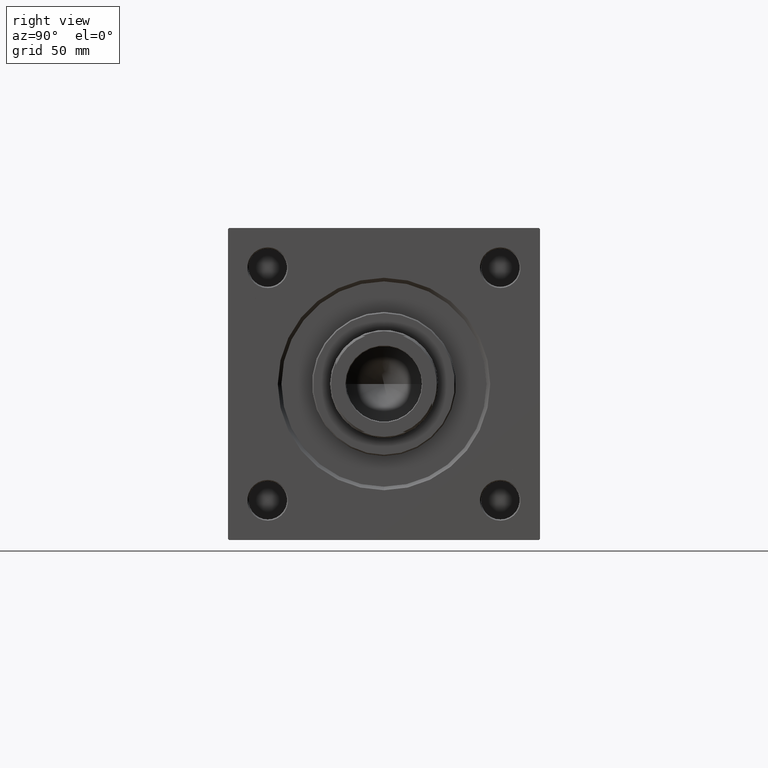
[diagram: clean part render]
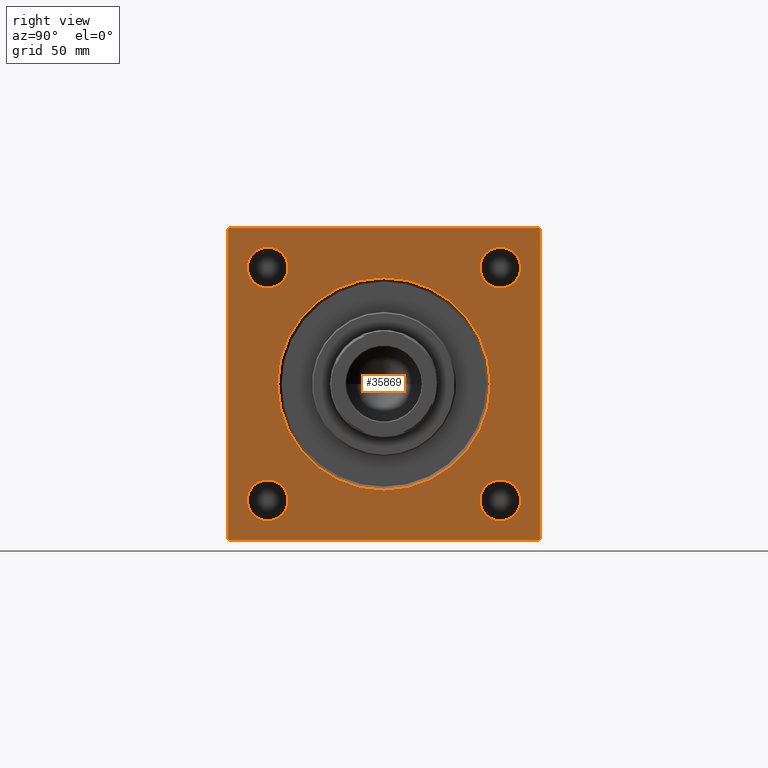
[diagram: same view with one face highlighted and labeled with its STEP entity id]
A machine part, right view. The second image highlights one B-rep face of the part: STEP entity #35869.
In plain terms, the highlighted planar face has unit normal (-1, 0, 0).
Its self-contained STEP definition (entity closure, byte-faithful):
#282 = DIRECTION ( 'NONE',  ( 0.000000000000000000, 0.000000000000000000, -1.000000000000000000 ) ) ;
#477 = EDGE_CURVE ( 'NONE', #14630, #39445, #42008, .T. ) ;
#698 = DIRECTION ( 'NONE',  ( -1.000000000000000000, 0.000000000000000000, -0.000000000000000000 ) ) ;
#1036 = ORIENTED_EDGE ( 'NONE', *, *, #49412, .T. ) ;
#1122 = ORIENTED_EDGE ( 'NONE', *, *, #16027, .T. ) ;
#1437 = VERTEX_POINT ( 'NONE', #34018 ) ;
#1631 = EDGE_CURVE ( 'NONE', #28103, #32624, #3600, .T. ) ;
#2414 = CARTESIAN_POINT ( 'NONE',  ( 188.0000000000000000, 65.00000000000002842, 65.00000000000001421 ) ) ;
#2694 = VERTEX_POINT ( 'NONE', #20669 ) ;
#2703 = EDGE_CURVE ( 'NONE', #34264, #2694, #6923, .T. ) ;
#2796 = DIRECTION ( 'NONE',  ( -1.000000000000000000, 0.000000000000000000, -0.000000000000000000 ) ) ;
#2797 = ORIENTED_EDGE ( 'NONE', *, *, #16242, .T. ) ;
#2876 = EDGE_CURVE ( 'NONE', #8581, #19145, #30597, .T. ) ;
#2885 = DIRECTION ( 'NONE',  ( -1.000000000000000000, 0.000000000000000000, -0.000000000000000000 ) ) ;
#3102 = DIRECTION ( 'NONE',  ( -1.000000000000000000, 0.000000000000000000, -0.000000000000000000 ) ) ;
#3371 = VECTOR ( 'NONE', #29408, 1000.000000000000000 ) ;
#3600 = CIRCLE ( 'NONE', #43708, 8.499999999999923617 ) ;
#3602 = VERTEX_POINT ( 'NONE', #25509 ) ;
#3674 = AXIS2_PLACEMENT_3D ( 'NONE', #4774, #12236, #8390 ) ;
#3826 = EDGE_CURVE ( 'NONE', #8536, #41852, #34427, .T. ) ;
#4265 = DIRECTION ( 'NONE',  ( 0.000000000000000000, 0.000000000000000000, -1.000000000000000000 ) ) ;
#4302 = EDGE_CURVE ( 'NONE', #32624, #28103, #45392, .T. ) ;
#4774 = CARTESIAN_POINT ( 'NONE',  ( 188.0000000000000000, 0.000000000000000000, 0.000000000000000000 ) ) ;
#4793 = VERTEX_POINT ( 'NONE', #6477 ) ;
#5014 = AXIS2_PLACEMENT_3D ( 'NONE', #37159, #41016, #29509 ) ;
#5825 = LINE ( 'NONE', #9706, #3371 ) ;
#6477 = CARTESIAN_POINT ( 'NONE',  ( 188.0000000000000000, -64.99999999999998579, 64.50000000000008527 ) ) ;
#6508 = CIRCLE ( 'NONE', #20443, 8.499999999999923617 ) ;
#6653 = CARTESIAN_POINT ( 'NONE',  ( 188.0000000000000000, 48.45000000000000995, -48.45000000000001705 ) ) ;
#6923 = CIRCLE ( 'NONE', #3674, 44.24999999999998579 ) ;
#7154 = CARTESIAN_POINT ( 'NONE',  ( 188.0000000000000000, -64.99999999999998579, 64.50000000000008527 ) ) ;
#7560 = DIRECTION ( 'NONE',  ( -1.000000000000000000, 0.000000000000000000, -0.000000000000000000 ) ) ;
#8390 = DIRECTION ( 'NONE',  ( 0.000000000000000000, 0.000000000000000000, 1.000000000000000000 ) ) ;
#8536 = VERTEX_POINT ( 'NONE', #11695 ) ;
#8581 = VERTEX_POINT ( 'NONE', #46509 ) ;
#9267 = CARTESIAN_POINT ( 'NONE',  ( 188.0000000000000000, 48.45000000000000995, 48.45000000000001705 ) ) ;
#9706 = CARTESIAN_POINT ( 'NONE',  ( 188.0000000000000000, 65.00000000000002842, -64.50000000000001421 ) ) ;
#10256 = CARTESIAN_POINT ( 'NONE',  ( 188.0000000000000000, 48.45000000000000995, 39.95000000000008811 ) ) ;
#10341 = AXIS2_PLACEMENT_3D ( 'NONE', #18498, #3102, #29763 ) ;
#10520 = DIRECTION ( 'NONE',  ( -1.000000000000000000, 0.000000000000000000, -0.000000000000000000 ) ) ;
#11025 = FACE_BOUND ( 'NONE', #18467, .T. ) ;
#11450 = ORIENTED_EDGE ( 'NONE', *, *, #48948, .F. ) ;
#11625 = CARTESIAN_POINT ( 'NONE',  ( 188.0000000000000000, -48.45000000000001705, -48.45000000000001705 ) ) ;
#11695 = CARTESIAN_POINT ( 'NONE',  ( 188.0000000000000000, 64.50000000000005684, 65.00000000000001421 ) ) ;
#11974 = CARTESIAN_POINT ( 'NONE',  ( 188.0000000000000000, 5.419062086227035828E-15, 44.24999999999998579 ) ) ;
#12236 = DIRECTION ( 'NONE',  ( -1.000000000000000000, 0.000000000000000000, -0.000000000000000000 ) ) ;
#12502 = DIRECTION ( 'NONE',  ( 0.000000000000000000, 0.000000000000000000, 1.000000000000000000 ) ) ;
#12592 = CARTESIAN_POINT ( 'NONE',  ( 188.0000000000000000, -64.99999999999998579, 65.00000000000000000 ) ) ;
#13327 = EDGE_CURVE ( 'NONE', #46829, #1437, #46559, .T. ) ;
#14342 = FACE_OUTER_BOUND ( 'NONE', #15695, .T. ) ;
#14630 = VERTEX_POINT ( 'NONE', #32780 ) ;
#14867 = FACE_BOUND ( 'NONE', #23869, .T. ) ;
#15206 = AXIS2_PLACEMENT_3D ( 'NONE', #6653, #2796, #25877 ) ;
#15451 = DIRECTION ( 'NONE',  ( -1.000000000000000000, 0.000000000000000000, -0.000000000000000000 ) ) ;
#15695 = EDGE_LOOP ( 'NONE', ( #41549, #34945, #11450, #30044, #48548, #1122, #35256, #31072 ) ) ;
#15812 = DIRECTION ( 'NONE',  ( -1.000000000000000000, 0.000000000000000000, -0.000000000000000000 ) ) ;
#15954 = VECTOR ( 'NONE', #19603, 1000.000000000000000 ) ;
#16027 = EDGE_CURVE ( 'NONE', #30587, #8536, #25452, .T. ) ;
#16242 = EDGE_CURVE ( 'NONE', #2694, #34264, #32630, .T. ) ;
#16442 = LINE ( 'NONE', #12592, #31731 ) ;
#16803 = DIRECTION ( 'NONE',  ( 0.000000000000000000, -1.000000000000000000, -2.135044278125300850E-16 ) ) ;
#17549 = CARTESIAN_POINT ( 'NONE',  ( 188.0000000000000000, 48.45000000000000995, 56.94999999999993889 ) ) ;
#17776 = EDGE_CURVE ( 'NONE', #39445, #14630, #6508, .T. ) ;
#18270 = ORIENTED_EDGE ( 'NONE', *, *, #13327, .T. ) ;
#18467 = EDGE_LOOP ( 'NONE', ( #2797, #19984 ) ) ;
#18498 = CARTESIAN_POINT ( 'NONE',  ( 188.0000000000000000, -48.45000000000001705, -48.45000000000001705 ) ) ;
#19145 = VERTEX_POINT ( 'NONE', #26435 ) ;
#19465 = DIRECTION ( 'NONE',  ( -0.000000000000000000, -0.7071067811865376918, -0.7071067811865574537 ) ) ;
#19546 = CARTESIAN_POINT ( 'NONE',  ( 188.0000000000000000, 0.000000000000000000, 0.000000000000000000 ) ) ;
#19603 = DIRECTION ( 'NONE',  ( 0.000000000000000000, 0.7071067811865279218, -0.7071067811865672237 ) ) ;
#19984 = ORIENTED_EDGE ( 'NONE', *, *, #2703, .T. ) ;
#19993 = EDGE_CURVE ( 'NONE', #30587, #3602, #43197, .T. ) ;
#20194 = EDGE_CURVE ( 'NONE', #49052, #35139, #20783, .T. ) ;
#20443 = AXIS2_PLACEMENT_3D ( 'NONE', #48316, #44222, #12502 ) ;
#20669 = CARTESIAN_POINT ( 'NONE',  ( 188.0000000000000000, 0.000000000000000000, -44.24999999999998579 ) ) ;
#20783 = CIRCLE ( 'NONE', #27334, 8.499999999999923617 ) ;
#20889 = LINE ( 'NONE', #43678, #26301 ) ;
#21367 = EDGE_LOOP ( 'NONE', ( #48490, #49759 ) ) ;
#21846 = AXIS2_PLACEMENT_3D ( 'NONE', #26650, #10520, #37879 ) ;
#22811 = PLANE ( 'NONE',  #21846 ) ;
#23869 = EDGE_LOOP ( 'NONE', ( #18270, #46760 ) ) ;
#24258 = CIRCLE ( 'NONE', #10341, 8.499999999999923617 ) ;
#25306 = CARTESIAN_POINT ( 'NONE',  ( 188.0000000000000000, 65.00000000000002842, 64.50000000000001421 ) ) ;
#25452 = LINE ( 'NONE', #28306, #49748 ) ;
#25509 = CARTESIAN_POINT ( 'NONE',  ( 188.0000000000000000, 65.00000000000002842, -64.50000000000001421 ) ) ;
#25877 = DIRECTION ( 'NONE',  ( 0.000000000000000000, 0.000000000000000000, 1.000000000000000000 ) ) ;
#26301 = VECTOR ( 'NONE', #16803, 1000.000000000000000 ) ;
#26435 = CARTESIAN_POINT ( 'NONE',  ( 188.0000000000000000, -64.50000000000002842, -65.00000000000001421 ) ) ;
#26514 = DIRECTION ( 'NONE',  ( 0.000000000000000000, -1.000000000000000000, -1.067522139062650425E-16 ) ) ;
#26650 = CARTESIAN_POINT ( 'NONE',  ( 188.0000000000000000, 0.000000000000000000, 0.000000000000000000 ) ) ;
#27334 = AXIS2_PLACEMENT_3D ( 'NONE', #9267, #7560, #36379 ) ;
#27431 = ORIENTED_EDGE ( 'NONE', *, *, #1631, .T. ) ;
#27697 = EDGE_LOOP ( 'NONE', ( #1036, #43102 ) ) ;
#28103 = VERTEX_POINT ( 'NONE', #28210 ) ;
#28210 = CARTESIAN_POINT ( 'NONE',  ( 188.0000000000000000, 48.45000000000000995, -56.94999999999993889 ) ) ;
#28306 = CARTESIAN_POINT ( 'NONE',  ( 188.0000000000000000, 64.50000000000005684, 65.00000000000001421 ) ) ;
#28465 = CARTESIAN_POINT ( 'NONE',  ( 188.0000000000000000, -48.44999999999998153, 39.95000000000005969 ) ) ;
#28539 = CARTESIAN_POINT ( 'NONE',  ( 188.0000000000000000, 64.50000000000002842, -64.99999999999998579 ) ) ;
#29290 = DIRECTION ( 'NONE',  ( 0.000000000000000000, -0.7071067811865279218, 0.7071067811865671127 ) ) ;
#29408 = DIRECTION ( 'NONE',  ( -0.000000000000000000, 0.7071067811865671127, 0.7071067811865279218 ) ) ;
#29509 = DIRECTION ( 'NONE',  ( 0.000000000000000000, 0.000000000000000000, 1.000000000000000000 ) ) ;
#29763 = DIRECTION ( 'NONE',  ( 0.000000000000000000, 0.000000000000000000, 1.000000000000000000 ) ) ;
#30044 = ORIENTED_EDGE ( 'NONE', *, *, #45655, .T. ) ;
#30101 = EDGE_CURVE ( 'NONE', #1437, #46829, #24258, .T. ) ;
#30587 = VERTEX_POINT ( 'NONE', #25306 ) ;
#30597 = LINE ( 'NONE', #38001, #15954 ) ;
#31072 = ORIENTED_EDGE ( 'NONE', *, *, #43366, .T. ) ;
#31731 = VECTOR ( 'NONE', #282, 1000.000000000000000 ) ;
#32624 = VERTEX_POINT ( 'NONE', #45922 ) ;
#32630 = CIRCLE ( 'NONE', #50607, 44.24999999999998579 ) ;
#32780 = CARTESIAN_POINT ( 'NONE',  ( 188.0000000000000000, -48.44999999999998153, 56.94999999999991047 ) ) ;
#32841 = CIRCLE ( 'NONE', #5014, 8.499999999999923617 ) ;
#33012 = ORIENTED_EDGE ( 'NONE', *, *, #4302, .T. ) ;
#33830 = VECTOR ( 'NONE', #4265, 1000.000000000000000 ) ;
#34018 = CARTESIAN_POINT ( 'NONE',  ( 188.0000000000000000, -48.45000000000001705, -39.95000000000008811 ) ) ;
#34264 = VERTEX_POINT ( 'NONE', #11974 ) ;
#34427 = LINE ( 'NONE', #2414, #37207 ) ;
#34945 = ORIENTED_EDGE ( 'NONE', *, *, #2876, .T. ) ;
#35139 = VERTEX_POINT ( 'NONE', #10256 ) ;
#35256 = ORIENTED_EDGE ( 'NONE', *, *, #3826, .T. ) ;
#35772 = CARTESIAN_POINT ( 'NONE',  ( 188.0000000000000000, -48.44999999999998153, 48.44999999999998863 ) ) ;
#35869 = ADVANCED_FACE ( 'NONE', ( #50447, #38144, #14867, #38659, #11025, #14342 ), #22811, .F. ) ;
#36176 = CARTESIAN_POINT ( 'NONE',  ( 188.0000000000000000, -64.50000000000008527, 65.00000000000000000 ) ) ;
#36379 = DIRECTION ( 'NONE',  ( 0.000000000000000000, 0.000000000000000000, 1.000000000000000000 ) ) ;
#36456 = VERTEX_POINT ( 'NONE', #28539 ) ;
#36823 = EDGE_CURVE ( 'NONE', #4793, #8581, #16442, .T. ) ;
#37159 = CARTESIAN_POINT ( 'NONE',  ( 188.0000000000000000, 48.45000000000000995, 48.45000000000001705 ) ) ;
#37207 = VECTOR ( 'NONE', #26514, 1000.000000000000000 ) ;
#37608 = VECTOR ( 'NONE', #19465, 999.9999999999998863 ) ;
#37857 = LINE ( 'NONE', #7154, #37608 ) ;
#37879 = DIRECTION ( 'NONE',  ( -0.000000000000000000, 0.000000000000000000, 1.000000000000000000 ) ) ;
#37964 = DIRECTION ( 'NONE',  ( 0.000000000000000000, 0.000000000000000000, 1.000000000000000000 ) ) ;
#38001 = CARTESIAN_POINT ( 'NONE',  ( 188.0000000000000000, -64.50000000000002842, -65.00000000000001421 ) ) ;
#38144 = FACE_BOUND ( 'NONE', #21367, .T. ) ;
#38659 = FACE_BOUND ( 'NONE', #39194, .T. ) ;
#39194 = EDGE_LOOP ( 'NONE', ( #27431, #33012 ) ) ;
#39351 = CARTESIAN_POINT ( 'NONE',  ( 188.0000000000000000, 65.00000000000002842, 65.00000000000001421 ) ) ;
#39445 = VERTEX_POINT ( 'NONE', #28465 ) ;
#41016 = DIRECTION ( 'NONE',  ( -1.000000000000000000, 0.000000000000000000, -0.000000000000000000 ) ) ;
#41525 = AXIS2_PLACEMENT_3D ( 'NONE', #11625, #2885, #37964 ) ;
#41549 = ORIENTED_EDGE ( 'NONE', *, *, #36823, .T. ) ;
#41852 = VERTEX_POINT ( 'NONE', #36176 ) ;
#41903 = DIRECTION ( 'NONE',  ( 0.000000000000000000, 0.000000000000000000, 1.000000000000000000 ) ) ;
#42008 = CIRCLE ( 'NONE', #46110, 8.499999999999923617 ) ;
#42576 = DIRECTION ( 'NONE',  ( 0.000000000000000000, 0.000000000000000000, 1.000000000000000000 ) ) ;
#42937 = CARTESIAN_POINT ( 'NONE',  ( 188.0000000000000000, 48.45000000000000995, -48.45000000000001705 ) ) ;
#43102 = ORIENTED_EDGE ( 'NONE', *, *, #20194, .T. ) ;
#43197 = LINE ( 'NONE', #39351, #33830 ) ;
#43366 = EDGE_CURVE ( 'NONE', #41852, #4793, #37857, .T. ) ;
#43678 = CARTESIAN_POINT ( 'NONE',  ( 188.0000000000000000, 65.00000000000002842, -64.99999999999998579 ) ) ;
#43708 = AXIS2_PLACEMENT_3D ( 'NONE', #42937, #15812, #41903 ) ;
#44222 = DIRECTION ( 'NONE',  ( -1.000000000000000000, 0.000000000000000000, -0.000000000000000000 ) ) ;
#44452 = CARTESIAN_POINT ( 'NONE',  ( 188.0000000000000000, -48.45000000000001705, -56.94999999999993889 ) ) ;
#45392 = CIRCLE ( 'NONE', #15206, 8.499999999999923617 ) ;
#45655 = EDGE_CURVE ( 'NONE', #36456, #3602, #5825, .T. ) ;
#45922 = CARTESIAN_POINT ( 'NONE',  ( 188.0000000000000000, 48.45000000000000995, -39.95000000000008811 ) ) ;
#46110 = AXIS2_PLACEMENT_3D ( 'NONE', #35772, #698, #47565 ) ;
#46509 = CARTESIAN_POINT ( 'NONE',  ( 188.0000000000000000, -64.99999999999998579, -64.50000000000002842 ) ) ;
#46559 = CIRCLE ( 'NONE', #41525, 8.499999999999923617 ) ;
#46760 = ORIENTED_EDGE ( 'NONE', *, *, #30101, .T. ) ;
#46829 = VERTEX_POINT ( 'NONE', #44452 ) ;
#47565 = DIRECTION ( 'NONE',  ( 0.000000000000000000, 0.000000000000000000, 1.000000000000000000 ) ) ;
#48316 = CARTESIAN_POINT ( 'NONE',  ( 188.0000000000000000, -48.44999999999998153, 48.44999999999998863 ) ) ;
#48490 = ORIENTED_EDGE ( 'NONE', *, *, #17776, .T. ) ;
#48548 = ORIENTED_EDGE ( 'NONE', *, *, #19993, .F. ) ;
#48948 = EDGE_CURVE ( 'NONE', #36456, #19145, #20889, .T. ) ;
#49052 = VERTEX_POINT ( 'NONE', #17549 ) ;
#49412 = EDGE_CURVE ( 'NONE', #35139, #49052, #32841, .T. ) ;
#49748 = VECTOR ( 'NONE', #29290, 1000.000000000000000 ) ;
#49759 = ORIENTED_EDGE ( 'NONE', *, *, #477, .T. ) ;
#50447 = FACE_BOUND ( 'NONE', #27697, .T. ) ;
#50607 = AXIS2_PLACEMENT_3D ( 'NONE', #19546, #15451, #42576 ) ;